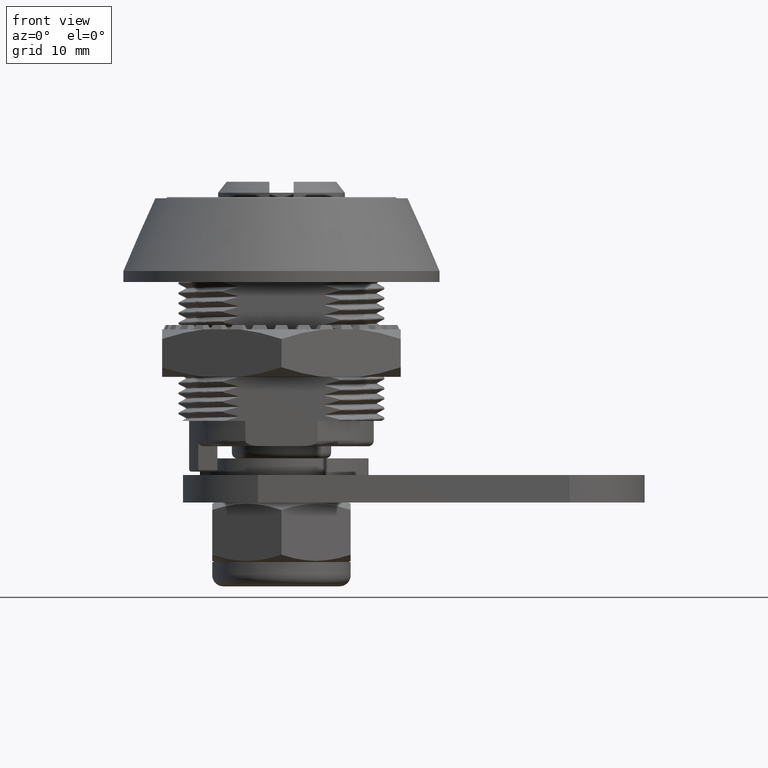
[diagram: clean part render]
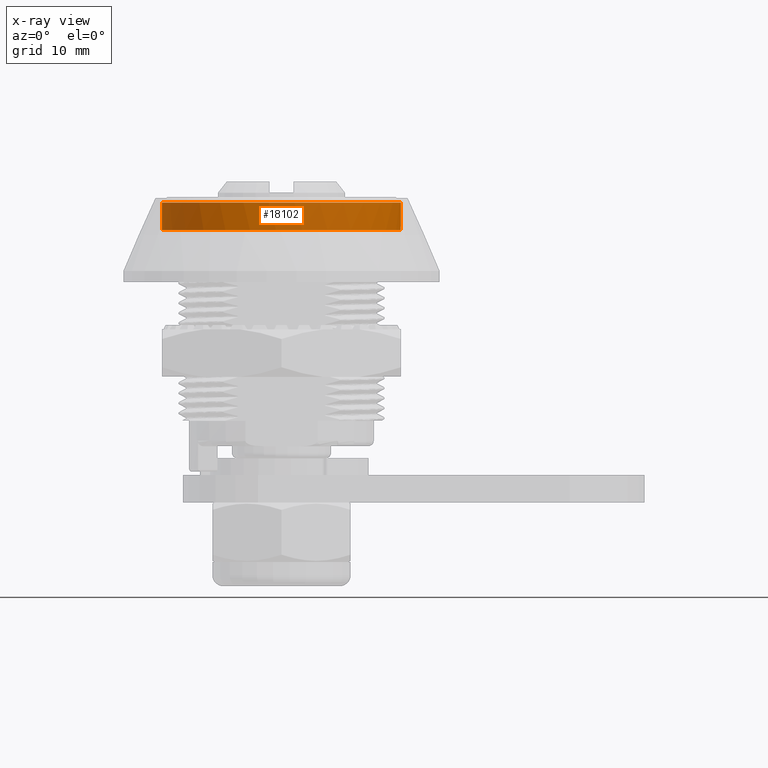
[diagram: x-ray — body ghosted, one internal face saturated and labeled with its STEP entity id]
A machine part, front view, then the same camera in x-ray: the body is ghosted and one INTERNAL B-rep face — a face not visible from any outside direction — is saturated and labeled: STEP entity #18102.
In plain terms, the highlighted cylindrical surface (bore or boss wall) has radius 10.85 mm, axis along (0, 0, -1).
Its self-contained STEP definition (entity closure, byte-faithful):
#2624=CYLINDRICAL_SURFACE('',#18660,10.85);
#4574=FACE_BOUND('',#6410,.T.);
#5386=FACE_OUTER_BOUND('',#6409,.T.);
#6409=EDGE_LOOP('',(#16094));
#6410=EDGE_LOOP('',(#16095));
#6782=CIRCLE('',#18596,10.85);
#6790=CIRCLE('',#18659,10.85);
#8195=VERTEX_POINT('',#43993);
#8362=VERTEX_POINT('',#51992);
#10557=EDGE_CURVE('',#8195,#8195,#6782,.T.);
#11015=EDGE_CURVE('',#8362,#8362,#6790,.T.);
#16094=ORIENTED_EDGE('',*,*,#10557,.F.);
#16095=ORIENTED_EDGE('',*,*,#11015,.F.);
#18102=ADVANCED_FACE('',(#5386,#4574),#2624,.T.);
#18596=AXIS2_PLACEMENT_3D('',#43994,#19716,#19717);
#18659=AXIS2_PLACEMENT_3D('',#51993,#19882,#19883);
#18660=AXIS2_PLACEMENT_3D('',#51994,#19884,#19885);
#19716=DIRECTION('center_axis',(0.,4.31772930828453E-16,-1.));
#19717=DIRECTION('ref_axis',(1.,0.,0.));
#19882=DIRECTION('center_axis',(0.,-4.31772930828453E-16,1.));
#19883=DIRECTION('ref_axis',(0.,-1.,-4.31772930828453E-16));
#19884=DIRECTION('center_axis',(0.,4.31772930828453E-16,-1.));
#19885=DIRECTION('ref_axis',(0.,1.,4.31772930828453E-16));
#43993=CARTESIAN_POINT('',(7.43723739032176,7.9,-3.));
#43994=CARTESIAN_POINT('Origin',(0.,1.29531879248536E-15,-3.));
#51992=CARTESIAN_POINT('',(-1.32874177707488E-15,10.85,-0.500000000000005));
#51993=CARTESIAN_POINT('Origin',(0.,2.15886465414229E-16,-0.500000000000005));
#51994=CARTESIAN_POINT('Origin',(0.,6.47659396242682E-16,-1.5));